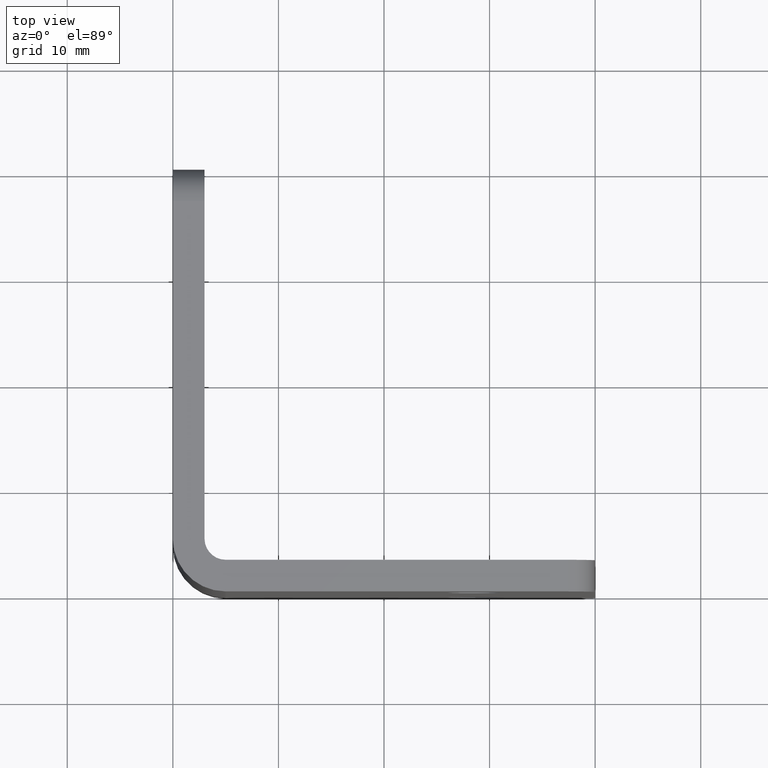
[diagram: clean part render]
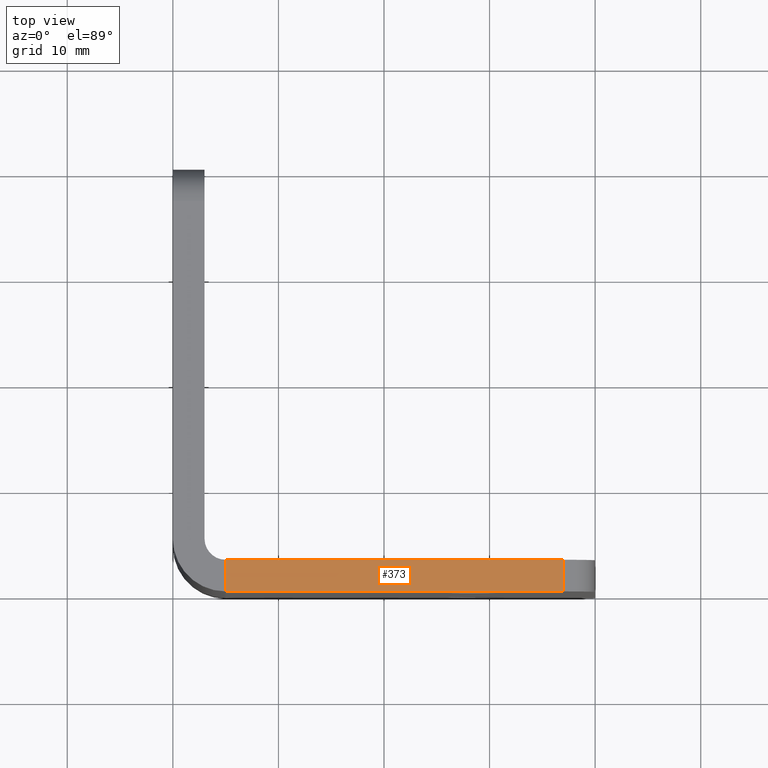
[diagram: same view with one face highlighted and labeled with its STEP entity id]
A machine part, top view. The second image highlights one B-rep face of the part: STEP entity #373.
In plain terms, the highlighted planar face has unit normal (0, 0, 1).
Its self-contained STEP definition (entity closure, byte-faithful):
#25=PLANE('',#424);
#39=FACE_OUTER_BOUND('',#63,.T.);
#63=EDGE_LOOP('',(#275,#276,#277,#278));
#93=LINE('',#596,#125);
#95=LINE('',#606,#127);
#97=LINE('',#610,#129);
#98=LINE('',#611,#130);
#125=VECTOR('',#476,10.);
#127=VECTOR('',#486,10.);
#129=VECTOR('',#490,10.);
#130=VECTOR('',#491,10.);
#178=VERTEX_POINT('',#593);
#179=VERTEX_POINT('',#595);
#183=VERTEX_POINT('',#604);
#184=VERTEX_POINT('',#609);
#212=EDGE_CURVE('',#178,#179,#93,.T.);
#217=EDGE_CURVE('',#183,#178,#95,.T.);
#219=EDGE_CURVE('',#183,#184,#97,.T.);
#220=EDGE_CURVE('',#184,#179,#98,.T.);
#275=ORIENTED_EDGE('',*,*,#217,.F.);
#276=ORIENTED_EDGE('',*,*,#219,.T.);
#277=ORIENTED_EDGE('',*,*,#220,.T.);
#278=ORIENTED_EDGE('',*,*,#212,.F.);
#373=ADVANCED_FACE('',(#39),#25,.T.);
#424=AXIS2_PLACEMENT_3D('',#608,#488,#489);
#476=DIRECTION('',(-1.,0.,1.11022302462516E-16));
#486=DIRECTION('',(0.,-1.,0.));
#488=DIRECTION('center_axis',(1.11022302462516E-16,0.,1.));
#489=DIRECTION('ref_axis',(1.,0.,-1.11022302462516E-16));
#490=DIRECTION('',(-1.,0.,1.11022302462516E-16));
#491=DIRECTION('',(0.,-1.,0.));
#593=CARTESIAN_POINT('',(37.,0.,20.));
#595=CARTESIAN_POINT('',(5.,-5.55111512312578E-16,20.));
#596=CARTESIAN_POINT('',(40.,0.,20.));
#604=CARTESIAN_POINT('',(37.,3.,20.));
#606=CARTESIAN_POINT('',(37.,0.,20.));
#608=CARTESIAN_POINT('Origin',(40.,0.,20.));
#609=CARTESIAN_POINT('',(5.,3.,20.));
#610=CARTESIAN_POINT('',(40.,3.,20.));
#611=CARTESIAN_POINT('',(5.,1.5,20.));